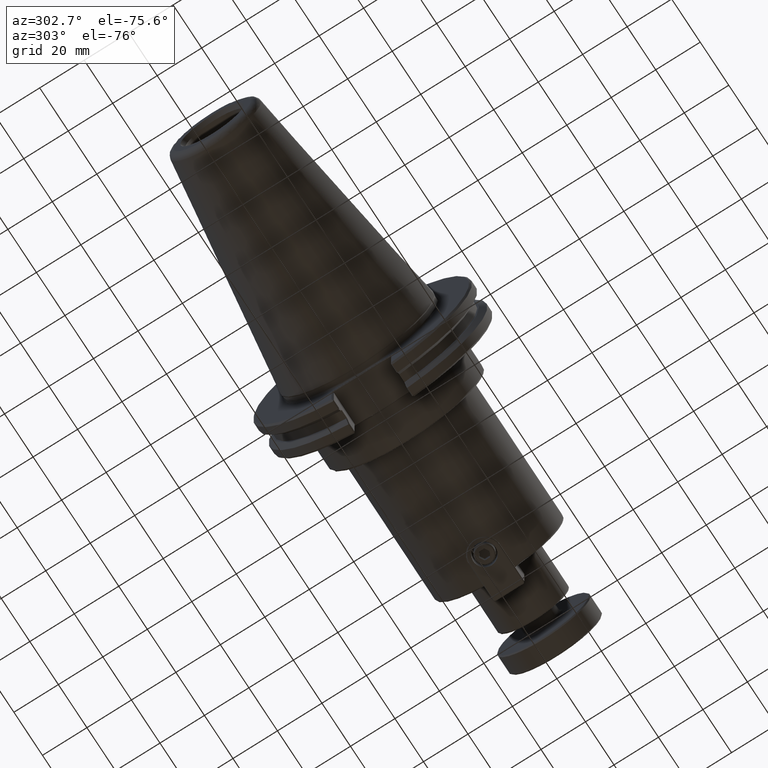
[diagram: clean part render]
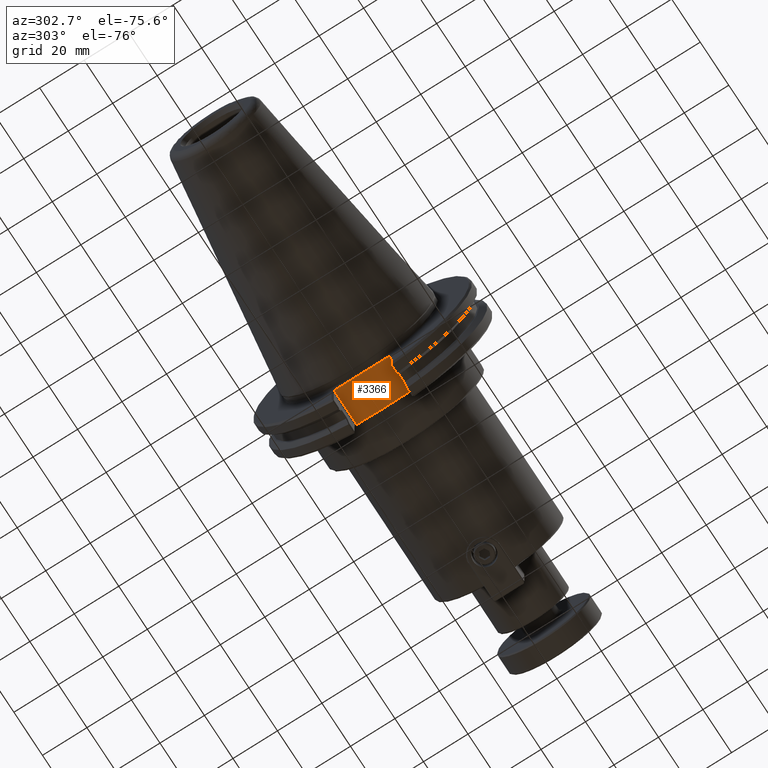
[diagram: same view with one face highlighted and labeled with its STEP entity id]
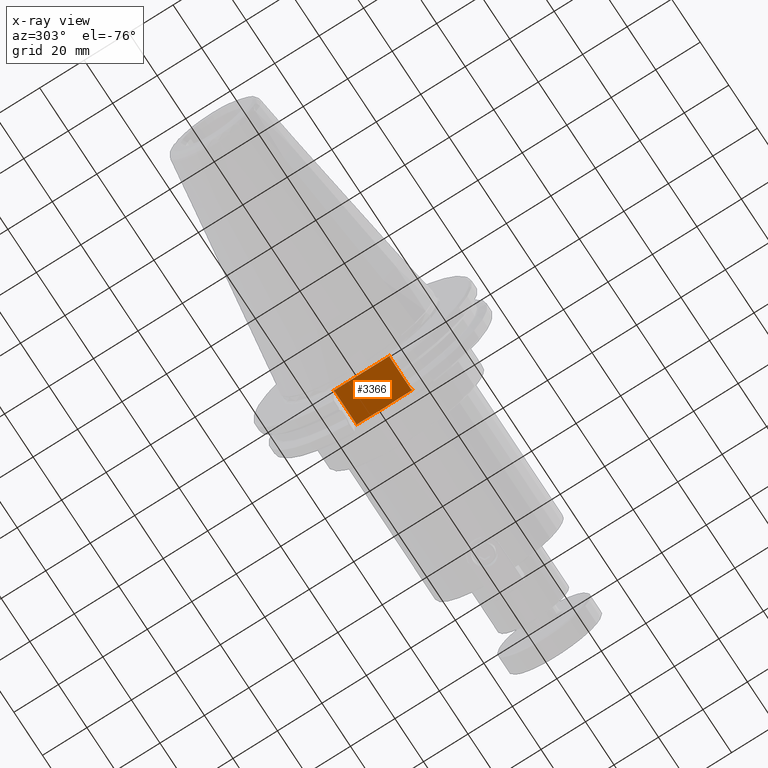
[diagram: x-ray of the same camera — body ghosted, the highlighted face saturated]
A machine part, auxiliary view. The second image highlights one B-rep face of the part: STEP entity #3366.
The next image is the same camera in x-ray: the body ghosted, the highlighted face saturated — about 0% of this face is hidden behind the body in this view.
In plain terms, the highlighted planar face has unit normal (-0, -0, 1).
Its self-contained STEP definition (entity closure, byte-faithful):
#160=B_SPLINE_CURVE_WITH_KNOTS('',3,(#5257,#5258,#5259,#5260,#5261,#5262,
#5263,#5264,#5265,#5266,#5267),.UNSPECIFIED.,.F.,.F.,(4,2,3,2,4),(3.05134947675945,
3.21269801686381,3.57045501624467,3.92821201562554,4.0895605557299),
 .UNSPECIFIED.);
#193=B_SPLINE_CURVE_WITH_KNOTS('',3,(#6565,#6566,#6567,#6568,#6569,#6570),
 .UNSPECIFIED.,.F.,.F.,(4,2,4),(0.,0.23405268611315,0.332370094859392),
 .UNSPECIFIED.);
#194=B_SPLINE_CURVE_WITH_KNOTS('',3,(#6573,#6574,#6575,#6576,#6577,#6578),
 .UNSPECIFIED.,.F.,.F.,(4,2,4),(-0.332370094859392,-0.23405268611315,0.),
 .UNSPECIFIED.);
#262=PLANE('',#3822);
#422=FACE_OUTER_BOUND('',#623,.T.);
#623=EDGE_LOOP('',(#2772,#2773,#2774,#2775,#2776,#2777,#2778,#2779,#2780,
#2781,#2782,#2783,#2784));
#948=LINE('',#6469,#1174);
#950=LINE('',#6474,#1176);
#951=LINE('',#6478,#1177);
#957=LINE('',#6503,#1183);
#959=LINE('',#6508,#1185);
#960=LINE('',#6512,#1186);
#973=LINE('',#6585,#1199);
#975=LINE('',#6589,#1201);
#983=LINE('',#6636,#1209);
#984=LINE('',#6638,#1210);
#1174=VECTOR('',#4356,0.393700787401575);
#1176=VECTOR('',#4362,0.393700787401575);
#1177=VECTOR('',#4367,0.393700787401575);
#1183=VECTOR('',#4383,0.393700787401575);
#1185=VECTOR('',#4389,0.393700787401575);
#1186=VECTOR('',#4394,0.393700787401575);
#1199=VECTOR('',#4443,0.393700787401575);
#1201=VECTOR('',#4449,0.393700787401575);
#1209=VECTOR('',#4495,0.393700787401575);
#1210=VECTOR('',#4498,0.393700787401575);
#1384=VERTEX_POINT('',#5255);
#1385=VERTEX_POINT('',#5256);
#1476=VERTEX_POINT('',#6466);
#1477=VERTEX_POINT('',#6468);
#1478=VERTEX_POINT('',#6473);
#1479=VERTEX_POINT('',#6477);
#1486=VERTEX_POINT('',#6500);
#1487=VERTEX_POINT('',#6502);
#1488=VERTEX_POINT('',#6507);
#1489=VERTEX_POINT('',#6511);
#1503=VERTEX_POINT('',#6563);
#1504=VERTEX_POINT('',#6564);
#1505=VERTEX_POINT('',#6571);
#1733=EDGE_CURVE('',#1384,#1385,#160,.F.);
#1864=EDGE_CURVE('',#1476,#1477,#948,.T.);
#1867=EDGE_CURVE('',#1477,#1478,#950,.T.);
#1869=EDGE_CURVE('',#1478,#1479,#951,.T.);
#1879=EDGE_CURVE('',#1486,#1487,#957,.T.);
#1882=EDGE_CURVE('',#1487,#1488,#959,.T.);
#1884=EDGE_CURVE('',#1488,#1489,#960,.T.);
#1906=EDGE_CURVE('',#1503,#1504,#193,.F.);
#1908=EDGE_CURVE('',#1504,#1505,#194,.F.);
#1912=EDGE_CURVE('',#1486,#1503,#973,.T.);
#1916=EDGE_CURVE('',#1505,#1479,#975,.T.);
#1936=EDGE_CURVE('',#1384,#1476,#983,.T.);
#1938=EDGE_CURVE('',#1489,#1385,#984,.T.);
#2772=ORIENTED_EDGE('',*,*,#1864,.F.);
#2773=ORIENTED_EDGE('',*,*,#1936,.F.);
#2774=ORIENTED_EDGE('',*,*,#1733,.T.);
#2775=ORIENTED_EDGE('',*,*,#1938,.F.);
#2776=ORIENTED_EDGE('',*,*,#1884,.F.);
#2777=ORIENTED_EDGE('',*,*,#1882,.F.);
#2778=ORIENTED_EDGE('',*,*,#1879,.F.);
#2779=ORIENTED_EDGE('',*,*,#1912,.T.);
#2780=ORIENTED_EDGE('',*,*,#1906,.T.);
#2781=ORIENTED_EDGE('',*,*,#1908,.T.);
#2782=ORIENTED_EDGE('',*,*,#1916,.T.);
#2783=ORIENTED_EDGE('',*,*,#1869,.F.);
#2784=ORIENTED_EDGE('',*,*,#1867,.F.);
#3366=ADVANCED_FACE('',(#422),#262,.F.);
#3822=AXIS2_PLACEMENT_3D('',#6715,#4577,#4578);
#4356=DIRECTION('',(-0.707106781186548,-0.707106781186548,-1.46097790076307E-31));
#4362=DIRECTION('',(-1.,-1.03382630160234E-13,-2.02434377962997E-31));
#4367=DIRECTION('',(-0.707106781186621,0.707106781186474,-1.40187652729539E-31));
#4383=DIRECTION('',(0.707106781186475,0.70710678118662,1.46097790076293E-31));
#4389=DIRECTION('',(1.,1.03382630160234E-13,2.02434377962997E-31));
#4394=DIRECTION('',(0.707106781186546,-0.707106781186549,1.40187652729524E-31));
#4443=DIRECTION('',(0.,1.,4.17909819565459E-33));
#4449=DIRECTION('',(0.,1.,4.17909819565459E-33));
#4495=DIRECTION('',(0.,1.,4.17909819565459E-33));
#4498=DIRECTION('',(0.,1.,4.17909819565459E-33));
#4577=DIRECTION('center_axis',(-2.02434377962997E-31,-4.17909819565459E-33,
1.));
#4578=DIRECTION('ref_axis',(1.,0.,2.02434377962997E-31));
#5255=CARTESIAN_POINT('',(0.75,0.217901353827828,-1.388));
#5256=CARTESIAN_POINT('',(0.75,-0.217901353827828,-1.388));
#5257=CARTESIAN_POINT('Ctrl Pts',(0.75,-0.217901353827828,-1.388));
#5258=CARTESIAN_POINT('Ctrl Pts',(0.75,-0.196727004732768,-1.388));
#5259=CARTESIAN_POINT('Ctrl Pts',(0.750643626213256,-0.171325938788188,
-1.388));
#5260=CARTESIAN_POINT('Ctrl Pts',(0.752918836679155,-0.103239856619019,
-1.388));
#5261=CARTESIAN_POINT('Ctrl Pts',(0.755281585811383,-0.0469497374515567,
-1.388));
#5262=CARTESIAN_POINT('Ctrl Pts',(0.755281585811383,5.80058829556858E-33,
-1.388));
#5263=CARTESIAN_POINT('Ctrl Pts',(0.755281585811383,0.0469497374515567,
-1.388));
#5264=CARTESIAN_POINT('Ctrl Pts',(0.752918836679155,0.103239856619019,-1.388));
#5265=CARTESIAN_POINT('Ctrl Pts',(0.750643626213256,0.171325938788188,-1.388));
#5266=CARTESIAN_POINT('Ctrl Pts',(0.75,0.196727004732768,-1.388));
#5267=CARTESIAN_POINT('Ctrl Pts',(0.75,0.217901353827828,-1.388));
#6466=CARTESIAN_POINT('',(0.75,0.504215728752822,-1.388));
#6468=CARTESIAN_POINT('',(0.73328427124746,0.487500000000283,-1.388));
#6469=CARTESIAN_POINT('',(0.589370318511462,0.343586047264284,-1.388));
#6473=CARTESIAN_POINT('',(0.14171572875254,0.487500000000221,-1.388));
#6474=CARTESIAN_POINT('',(0.68295636577542,0.487500000000277,-1.388));
#6477=CARTESIAN_POINT('',(0.125,0.504215728752758,-1.388));
#6478=CARTESIAN_POINT('',(0.371086047264017,0.258129681488792,-1.388));
#6500=CARTESIAN_POINT('',(0.125,-0.504215728752318,-1.388));
#6502=CARTESIAN_POINT('',(0.141715728752536,-0.487499999999778,-1.388));
#6503=CARTESIAN_POINT('',(0.371086047263991,-0.258129681488277,-1.388));
#6507=CARTESIAN_POINT('',(0.733284271247464,-0.487499999999717,-1.388));
#6508=CARTESIAN_POINT('',(0.36670636577552,-0.487499999999755,-1.388));
#6511=CARTESIAN_POINT('',(0.75,-0.504215728752254,-1.388));
#6512=CARTESIAN_POINT('',(0.58937031851147,-0.343586047263723,-1.388));
#6563=CARTESIAN_POINT('',(0.125,-0.139574352944947,-1.388));
#6564=CARTESIAN_POINT('',(0.12417190429163,-8.36245638639942E-17,-1.388));
#6565=CARTESIAN_POINT('Ctrl Pts',(0.12417190429163,2.73184799366426E-18,
-1.388));
#6566=CARTESIAN_POINT('Ctrl Pts',(0.12417190429163,-0.0307155756054003,
-1.388));
#6567=CARTESIAN_POINT('Ctrl Pts',(0.124535603772523,-0.0675724719038941,
-1.388));
#6568=CARTESIAN_POINT('Ctrl Pts',(0.124900067807065,-0.111189071869133,
-1.388));
#6569=CARTESIAN_POINT('Ctrl Pts',(0.125,-0.126671805865388,-1.388));
#6570=CARTESIAN_POINT('Ctrl Pts',(0.125,-0.139574352944947,-1.388));
#6571=CARTESIAN_POINT('',(0.125,0.139574352944947,-1.388));
#6573=CARTESIAN_POINT('Ctrl Pts',(0.125,0.139574352944947,-1.388));
#6574=CARTESIAN_POINT('Ctrl Pts',(0.125,0.126671805865388,-1.388));
#6575=CARTESIAN_POINT('Ctrl Pts',(0.124900067807065,0.111189071869133,-1.388));
#6576=CARTESIAN_POINT('Ctrl Pts',(0.124535603772523,0.0675724719038941,
-1.388));
#6577=CARTESIAN_POINT('Ctrl Pts',(0.12417190429163,0.0307155756054003,-1.388));
#6578=CARTESIAN_POINT('Ctrl Pts',(0.12417190429163,2.73184799366426E-18,
-1.388));
#6585=CARTESIAN_POINT('',(0.125,0.828125000000135,-1.388));
#6589=CARTESIAN_POINT('',(0.125,0.828125000000135,-1.388));
#6636=CARTESIAN_POINT('',(0.75,0.828125000000135,-1.388));
#6638=CARTESIAN_POINT('',(0.75,0.828125000000135,-1.388));
#6715=CARTESIAN_POINT('Origin',(0.60841273155094,2.69669485726678E-13,-1.388));